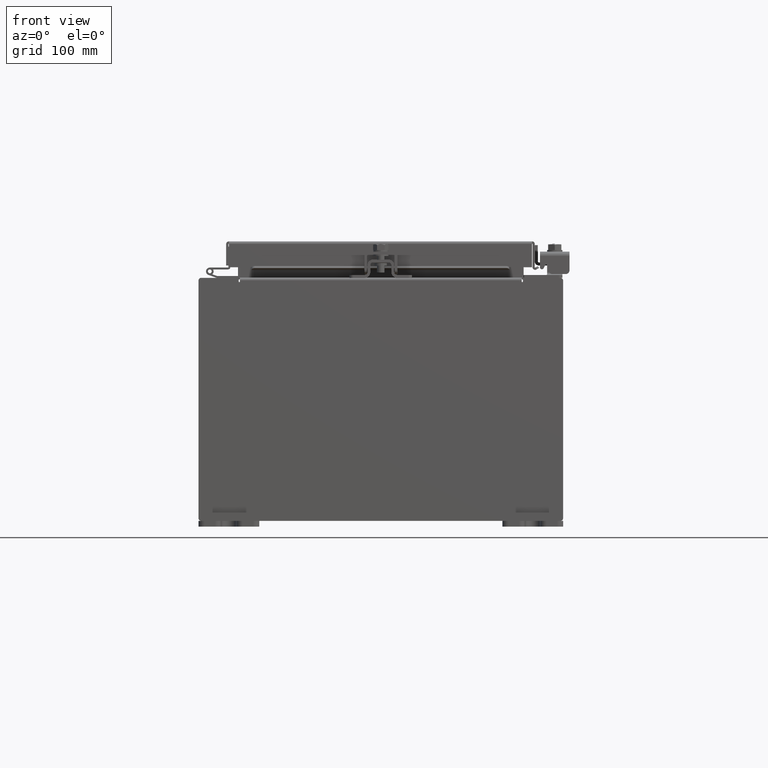
[diagram: clean part render]
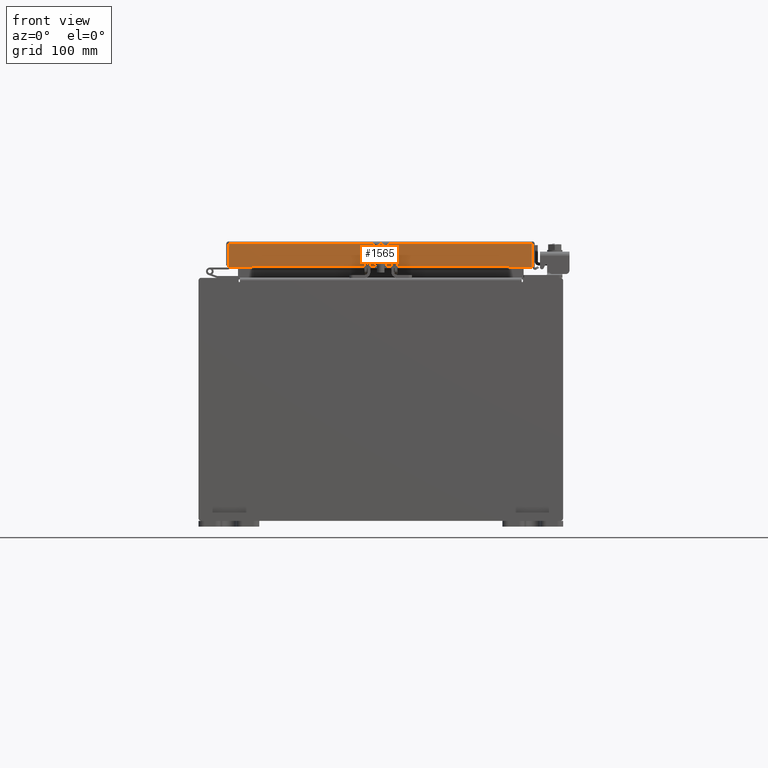
[diagram: same view with one face highlighted and labeled with its STEP entity id]
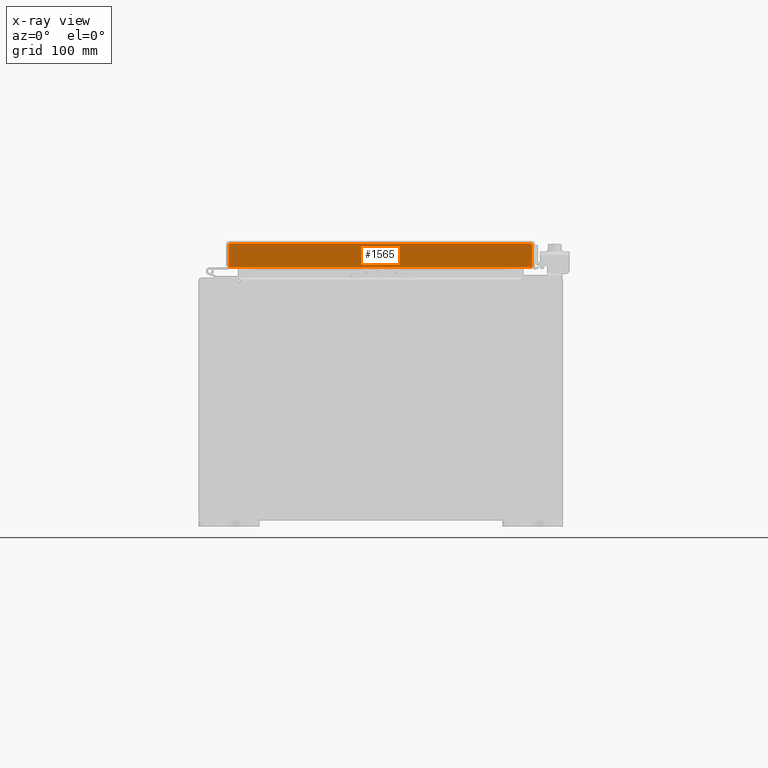
[diagram: x-ray of the same camera — body ghosted, the highlighted face saturated]
A machine part, front view. The second image highlights one B-rep face of the part: STEP entity #1565.
The next image is the same camera in x-ray: the body ghosted, the highlighted face saturated — about 0% of this face is hidden behind the body in this view.
In plain terms, the highlighted planar face has unit normal (-0, 1, -0).
Its self-contained STEP definition (entity closure, byte-faithful):
#137 = EDGE_CURVE ( 'NONE', #7400, #25288, #20886, .T. ) ;
#445 = DIRECTION ( 'NONE',  ( -3.412110487939144300E-031, 1.000000000000000000, -2.818880942772360100E-015 ) ) ;
#1097 = CARTESIAN_POINT ( 'NONE',  ( 5.077999999999998500, -7.094000000000002100, -0.8499999999999996400 ) ) ;
#1191 = VERTEX_POINT ( 'NONE', #14943 ) ;
#1395 = VERTEX_POINT ( 'NONE', #3100 ) ;
#1565 = ADVANCED_FACE ( 'NONE', ( #8133 ), #3384, .F. ) ;
#2555 = CARTESIAN_POINT ( 'NONE',  ( 4.989157864376268000, -7.094000000000002100, -0.8499999999999996400 ) ) ;
#3100 = CARTESIAN_POINT ( 'NONE',  ( -4.239157864376269700, -7.094000000000000300, -0.8499999999999998700 ) ) ;
#3384 = PLANE ( 'NONE',  #17395 ) ;
#4258 = LINE ( 'NONE', #25480, #4888 ) ;
#4489 = VECTOR ( 'NONE', #20635, 39.37007874015748100 ) ;
#4788 = VECTOR ( 'NONE', #5572, 39.37007874015748100 ) ;
#4814 = LINE ( 'NONE', #1097, #20298 ) ;
#4888 = VECTOR ( 'NONE', #15669, 39.37007874015748100 ) ;
#5088 = VERTEX_POINT ( 'NONE', #17149 ) ;
#5338 = CARTESIAN_POINT ( 'NONE',  ( 4.989157864376268000, -7.094000000000000300, -0.07469999999999978000 ) ) ;
#5572 = DIRECTION ( 'NONE',  ( 0.0000000000000000000, -2.818880942772360100E-015, -1.000000000000000000 ) ) ;
#6192 = CARTESIAN_POINT ( 'NONE',  ( 2.420551180144029300E-030, -7.094000000000000300, 2.025795506403870800E-014 ) ) ;
#7074 = ORIENTED_EDGE ( 'NONE', *, *, #20572, .F. ) ;
#7400 = VERTEX_POINT ( 'NONE', #16774 ) ;
#7918 = EDGE_CURVE ( 'NONE', #5088, #1395, #13843, .T. ) ;
#8133 = FACE_OUTER_BOUND ( 'NONE', #8938, .T. ) ;
#8938 = EDGE_LOOP ( 'NONE', ( #18423, #18587, #19050, #19588, #7074, #20547 ) ) ;
#10974 = LINE ( 'NONE', #5338, #20980 ) ;
#11558 = DIRECTION ( 'NONE',  ( 0.0000000000000000000, 2.818880942772360100E-015, 1.000000000000000000 ) ) ;
#13359 = DIRECTION ( 'NONE',  ( -1.000000000000000000, 0.0000000000000000000, 0.0000000000000000000 ) ) ;
#13843 = LINE ( 'NONE', #17418, #24385 ) ;
#14698 = LINE ( 'NONE', #18612, #4489 ) ;
#14943 = CARTESIAN_POINT ( 'NONE',  ( 4.989157864376268000, -7.094000000000000300, -0.08770000000000007000 ) ) ;
#15462 = DIRECTION ( 'NONE',  ( -1.000000000000000000, -4.379057701015054300E-047, 1.210448599004449200E-016 ) ) ;
#15669 = DIRECTION ( 'NONE',  ( 1.000000000000000000, 3.412110487939144700E-031, -9.300620212429628900E-046 ) ) ;
#16774 = CARTESIAN_POINT ( 'NONE',  ( -4.989157864376269700, -7.094000000000000300, -0.08770000000000007000 ) ) ;
#17149 = CARTESIAN_POINT ( 'NONE',  ( 4.239157864376267100, -7.094000000000000300, -0.8499999999999998700 ) ) ;
#17395 = AXIS2_PLACEMENT_3D ( 'NONE', #6192, #445, #11558 ) ;
#17418 = CARTESIAN_POINT ( 'NONE',  ( 4.239157864376267100, -7.094000000000000300, -0.8499999999999998700 ) ) ;
#18121 = VERTEX_POINT ( 'NONE', #2555 ) ;
#18423 = ORIENTED_EDGE ( 'NONE', *, *, #24207, .F. ) ;
#18507 = CARTESIAN_POINT ( 'NONE',  ( -4.989157864376269700, -7.094000000000000300, 2.025795506403870800E-014 ) ) ;
#18587 = ORIENTED_EDGE ( 'NONE', *, *, #137, .T. ) ;
#18612 = CARTESIAN_POINT ( 'NONE',  ( 5.077999999999998500, -7.094000000000002100, -0.8499999999999996400 ) ) ;
#19050 = ORIENTED_EDGE ( 'NONE', *, *, #26062, .F. ) ;
#19588 = ORIENTED_EDGE ( 'NONE', *, *, #7918, .F. ) ;
#20298 = VECTOR ( 'NONE', #15462, 39.37007874015748100 ) ;
#20547 = ORIENTED_EDGE ( 'NONE', *, *, #24158, .F. ) ;
#20572 = EDGE_CURVE ( 'NONE', #18121, #5088, #14698, .T. ) ;
#20635 = DIRECTION ( 'NONE',  ( -1.000000000000000000, -4.379057701015054300E-047, 1.210448599004449200E-016 ) ) ;
#20886 = LINE ( 'NONE', #18507, #4788 ) ;
#20980 = VECTOR ( 'NONE', #21439, 39.37007874015748100 ) ;
#21439 = DIRECTION ( 'NONE',  ( -0.0000000000000000000, -2.818880942772360100E-015, -1.000000000000000000 ) ) ;
#21611 = CARTESIAN_POINT ( 'NONE',  ( -4.989157864376269700, -7.094000000000002100, -0.8499999999999984200 ) ) ;
#24158 = EDGE_CURVE ( 'NONE', #1191, #18121, #10974, .T. ) ;
#24207 = EDGE_CURVE ( 'NONE', #7400, #1191, #4258, .T. ) ;
#24385 = VECTOR ( 'NONE', #13359, 39.37007874015748100 ) ;
#25288 = VERTEX_POINT ( 'NONE', #21611 ) ;
#25480 = CARTESIAN_POINT ( 'NONE',  ( 5.077999999999998500, -7.094000000000000300, -0.08770000000000007000 ) ) ;
#26062 = EDGE_CURVE ( 'NONE', #1395, #25288, #4814, .T. ) ;